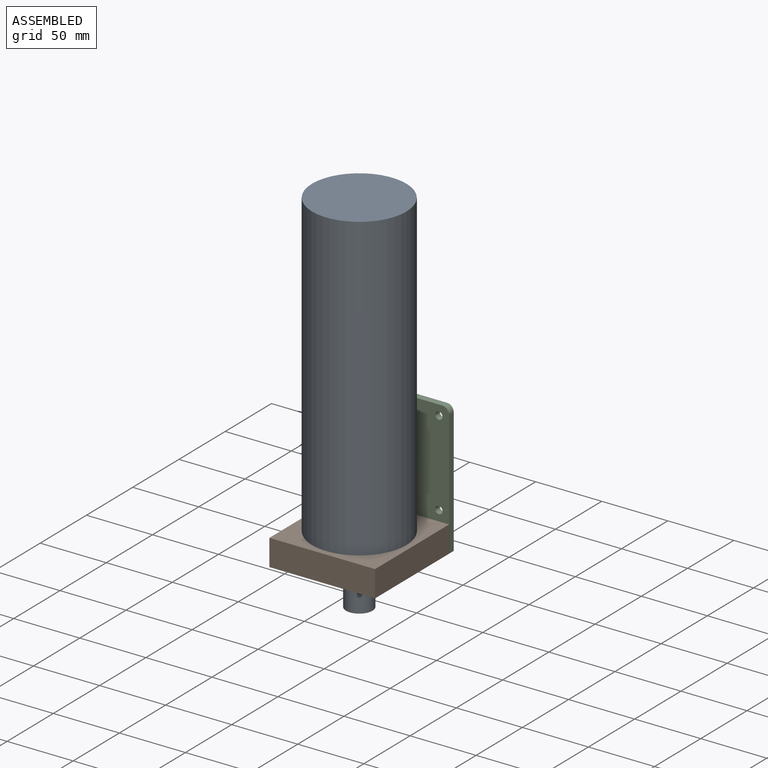
[diagram: assembled view]
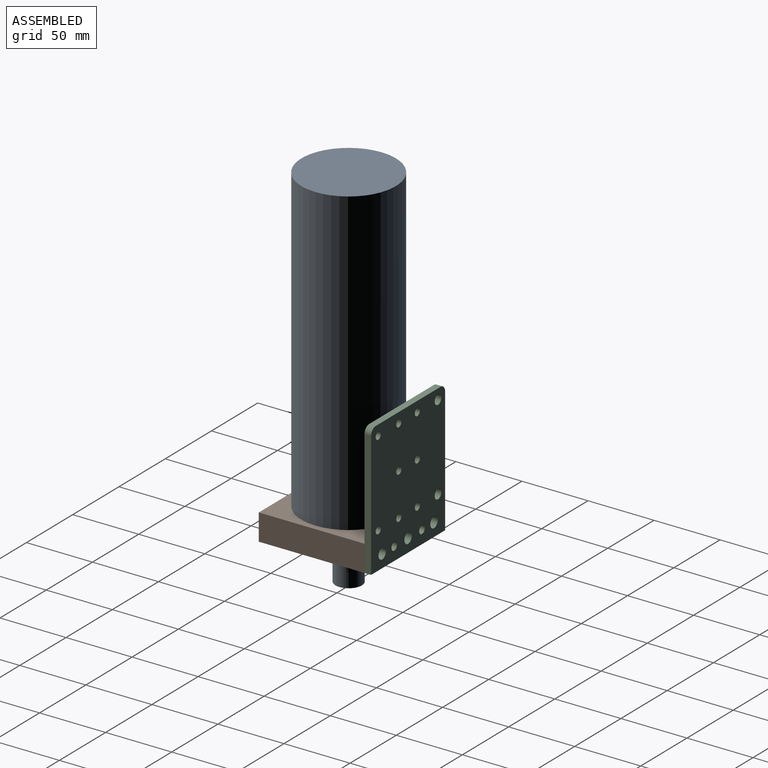
[diagram: assembled view, second angle]
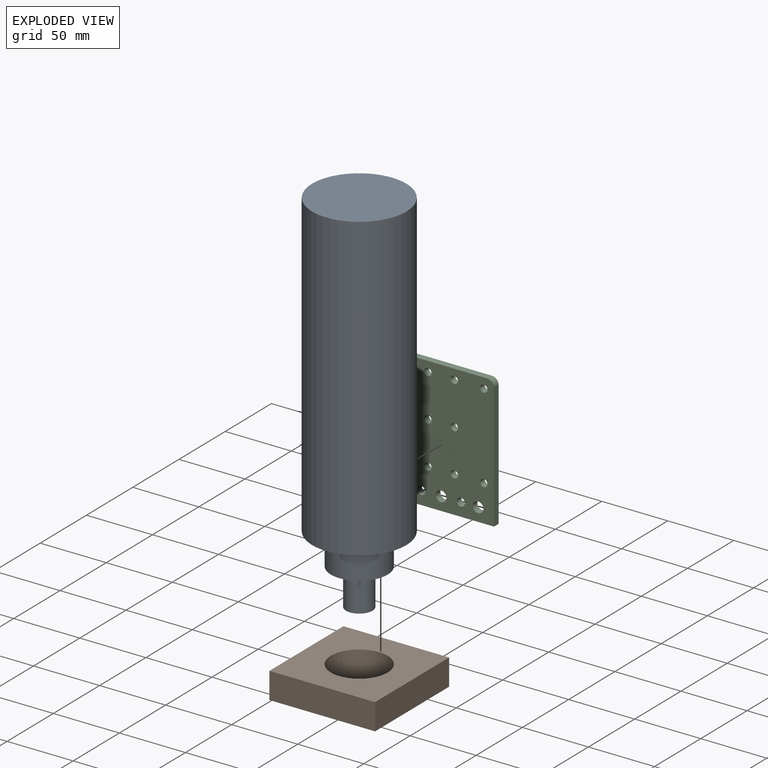
[diagram: exploded view]
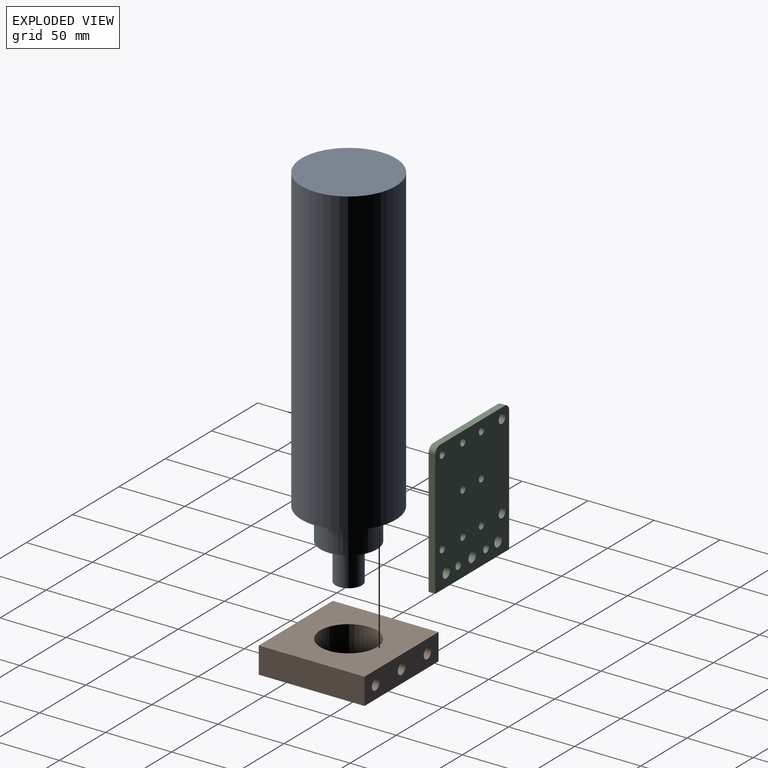
[diagram: exploded view, second angle]
ASSEMBLY  parts=3 mates=4
PART A: 7 faces, bbox 71.4x71.4x280 mm
  f0: cylinder r=10mm len=27.8mm, axis (0,0,1), area 1746.7mm2, adj f1,f6
  f1: plane 43x43mm, normal (0,0,-1), area 1138mm2, adj f0,f2
  f2: cylinder r=21.5mm len=43mm, axis (0,0,1), area 3242.1mm2, adj f1,f3
  f3: plane 71.4x71.4mm, normal (0,0,-1), area 2551.7mm2, adj f2,f4
  f4: cylinder r=35.7mm len=228.2mm, axis (0,0,1), area 51187.5mm2, adj f3,f5
  f5: plane 71.4x71.4mm, normal (0,0,1), area 4003.9mm2, adj f4
  f6: plane 20x20mm, normal (0,0,-1), area 314.2mm2, adj f0
PART B: 13 faces, bbox 80x80x20 mm
  f0: plane 80x20mm, normal (-1,0,0), area 1600mm2, adj f1,f4,f5,f6
  f1: plane 80x20mm, normal (0,-1,0), area 1600mm2, adj f0,f2,f5,f6
  f2: plane 80x20mm, normal (1,0,0), area 1600mm2, adj f1,f4,f5,f6
  f3: cylinder r=21.5mm len=43mm, axis (0,0,-1), area 2701.8mm2, adj f5,f6
  f4: plane 80x20mm, normal (0,1,0), area 1449.2mm2, adj f0,f2,f5,f6,f7,f9,f11
  f5: plane 80x80mm, normal (0,0,1), area 4947.8mm2, adj f0,f1,f2,f3,f4
  f6: plane 80x80mm, normal (0,0,-1), area 4947.8mm2, adj f0,f1,f2,f3,f4
  f7: cylinder r=4mm len=16mm, axis (0,1,0), area 402.1mm2, adj f4,f8
  f8: plane 8x8mm, normal (0,1,0), area 50.3mm2, adj f7
  f9: cylinder r=4mm len=16mm, axis (0,1,0), area 402.1mm2, adj f4,f10
  f10: plane 8x8mm, normal (0,1,0), area 50.3mm2, adj f9
  f11: cylinder r=4mm len=16mm, axis (0,1,0), area 402.1mm2, adj f4,f12
  f12: plane 8x8mm, normal (0,1,0), area 50.3mm2, adj f11
PART C: 23 faces, bbox 80x100x5 mm
  f0: plane 70x5mm, normal (0,1,0), area 350mm2, adj f1,f19,f21,f22
  f1: cylinder r=5mm len=5mm, axis (0,0,-1), area 39.3mm2, adj f0,f2,f21,f22
  f2: plane 95x5mm, normal (-1,0,0), area 475mm2, adj f1,f3,f21,f22
  f3: plane 80x5mm, normal (0,-1,0), area 400mm2, adj f2,f4,f21,f22
  f4: plane 95x5mm, normal (1,0,0), area 475mm2, adj f3,f19,f21,f22
  f5: cylinder r=2.75mm len=5.5mm, axis (0,0,-1), area 86.4mm2, adj f21,f22
  f6: cylinder r=3.57mm len=7.14mm, axis (0,0,-1), area 112.1mm2, adj f21,f22
  f7: cylinder r=2.75mm len=5.5mm, axis (0,0,-1), area 86.4mm2, adj f21,f22
  f8: cylinder r=4mm len=8mm, axis (0,0,-1), area 125.7mm2, adj f21,f22
  f9: cylinder r=4mm len=8mm, axis (0,0,-1), area 125.7mm2, adj f21,f22
  f10: cylinder r=4mm len=8mm, axis (0,0,-1), area 125.7mm2, adj f21,f22
  f11: cylinder r=3mm len=6mm, axis (0,0,-1), area 94.2mm2, adj f21,f22
  f12: cylinder r=3mm len=6mm, axis (0,0,-1), area 94.2mm2, adj f21,f22
  f13: cylinder r=2.75mm len=5.5mm, axis (0,0,-1), area 86.4mm2, adj f21,f22
  f14: cylinder r=2.75mm len=5.5mm, axis (0,0,-1), area 86.4mm2, adj f21,f22
  f15: cylinder r=2.75mm len=5.5mm, axis (0,0,-1), area 86.4mm2, adj f21,f22
  f16: cylinder r=2.75mm len=5.5mm, axis (0,0,-1), area 86.4mm2, adj f21,f22
  f17: cylinder r=2.75mm len=5.5mm, axis (0,0,-1), area 86.4mm2, adj f21,f22
  f18: cylinder r=2.75mm len=5.5mm, axis (0,0,-1), area 86.4mm2, adj f21,f22
  f19: cylinder r=5mm len=5mm, axis (0,0,-1), area 39.3mm2, adj f0,f4,f21,f22
  f20: cylinder r=3.57mm len=7.14mm, axis (0,0,-1), area 112.1mm2, adj f21,f22
  f21: plane 100x80mm, normal (0,0,1), area 7511.8mm2, adj f0,f1,f2,f3,f4,f5,f6,f7
  f22: plane 100x80mm, normal (0,0,-1), area 7511.8mm2, adj f0,f1,f2,f3,f4,f5,f6,f7
PLACE A t=(-41.55,-75.13,162.95)mm
PLACE B t=(-45.85,-35.13,-85.25)mm
PLACE C rot(axis=(1,0,0),90deg) t=(-45.85,-30.13,14.75)mm
MATE planar A.f0 <-> B.f3  axis (0,0,-1) through (-5.85,-75.13,-65.25)mm
MATE cylindrical C.f9 <-> B.f11  axis (0,-1,0) through (22.15,-35.13,-75.25)mm
MATE planar C.f21 <-> B.f4  axis (0,-1,0) through (-5.71,-35.13,-34.57)mm
MATE cylindrical A.f0 <-> B.f3  axis (0,0,1) through (-5.85,-75.13,-77.25)mm
